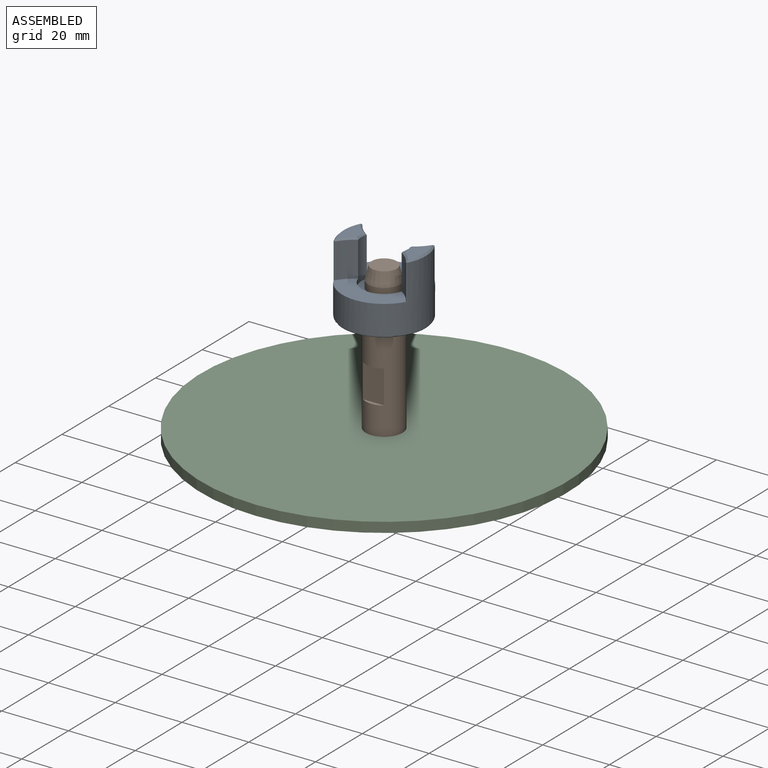
[diagram: assembled view]
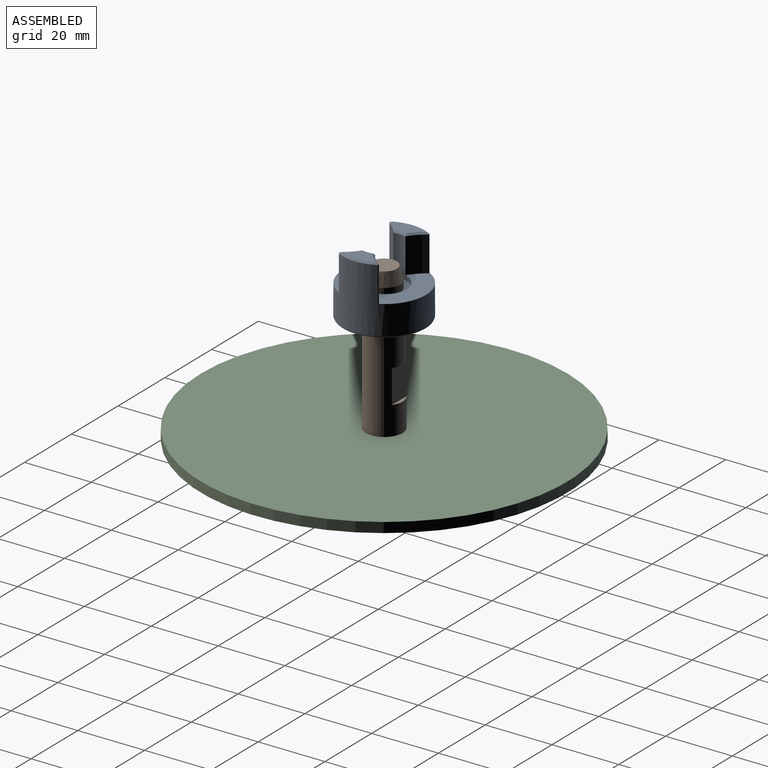
[diagram: assembled view, second angle]
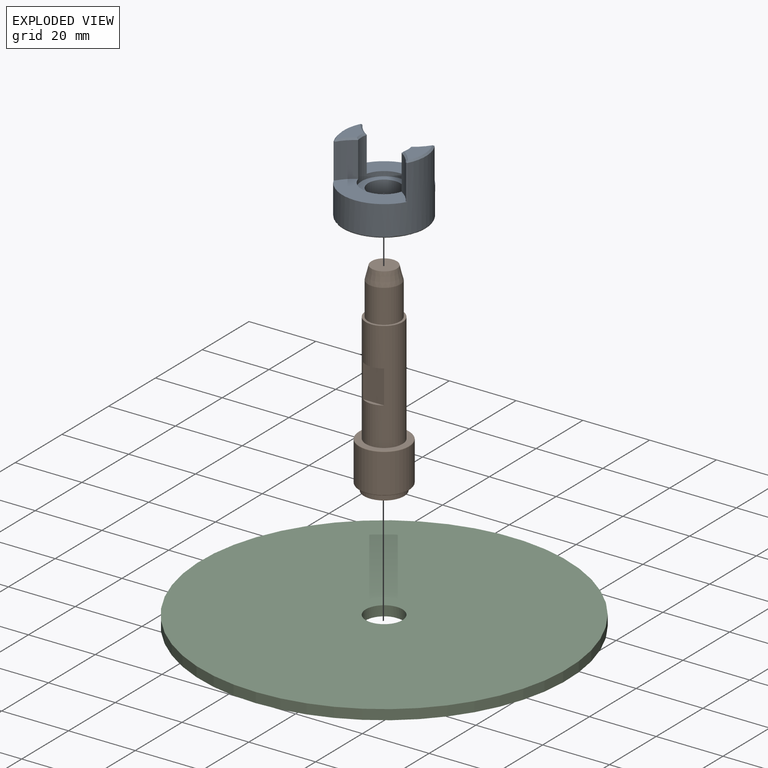
[diagram: exploded view]
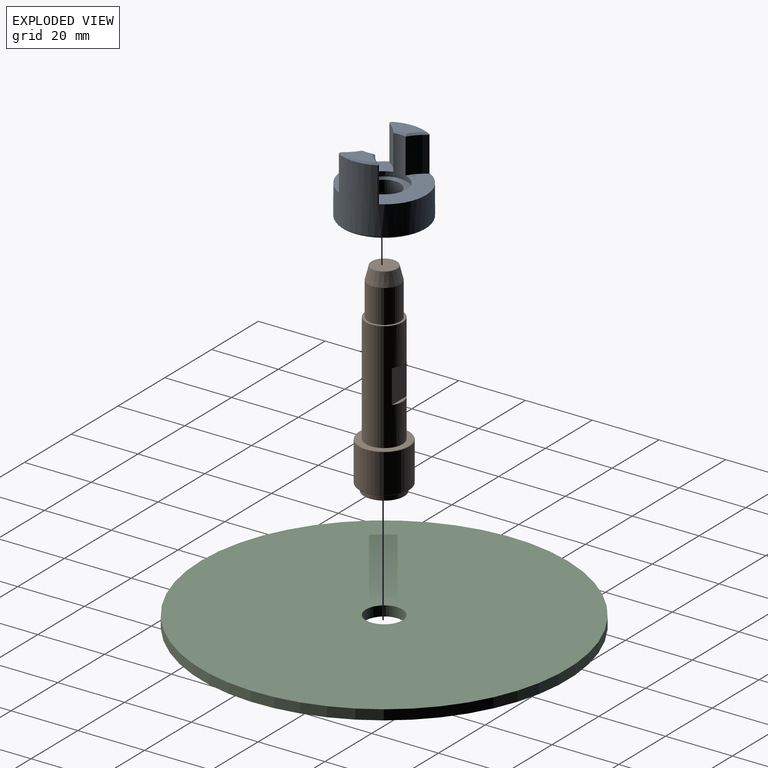
[diagram: exploded view, second angle]
ASSEMBLY  parts=3 mates=2
PART A: 26 faces, bbox 27.1x27.1x20.3 mm
  f0: plane 10.5x4.93mm, normal (0,0,-1), area 31.8mm2, adj f17,f18,f19,f20
  f1: plane 10.5x4.93mm, normal (0,0,-1), area 31.8mm2, adj f13,f14,f15,f16
  f2: cylinder r=4.8mm len=9.6mm, axis (0,0,1), area 236.8mm2, adj f4,f12
  f3: cylinder r=12.5mm len=25mm, axis (0,0,-1), area 940mm2, adj f7,f10,f13,f18,f21,f22,f23,f24
  f4: plane 24x24mm, normal (0,0,1), area 380mm2, adj f2,f25
  f5: cylinder r=12.5mm len=10.5mm, axis (0,0,-1), area 60.3mm2, adj f7,f11,f14,f22
  f6: cylinder r=12.5mm len=10.5mm, axis (0,0,-1), area 60.3mm2, adj f7,f11,f17,f24
  f7: plane 22.16x10.68mm, normal (0,0,-1), area 128.7mm2, adj f3,f5,f6,f11,f22,f24
  f8: cylinder r=12.5mm len=10.5mm, axis (0,0,-1), area 60.3mm2, adj f10,f11,f20,f21
  f9: cylinder r=12.5mm len=10.5mm, axis (0,0,-1), area 60.3mm2, adj f10,f11,f15,f23
  f10: plane 22.16x10.68mm, normal (0,0,-1), area 128.7mm2, adj f3,f8,f9,f11,f21,f23
  f11: cylinder r=6.75mm len=13.5mm, axis (0,0,-1), area 136.9mm2, adj f5,f6,f7,f8,f9,f10,f12,f16
  f12: plane 13.5x13.5mm, normal (0,0,-1), area 70.8mm2, adj f2,f11
  f13: cone r=12.5mm half-angle=45deg, axis (0,0,1), area 8.4mm2, adj f1,f3,f14,f15,f22,f23
  f14: cone r=12.5mm half-angle=45deg, axis (0,0,-1), area 4mm2, adj f1,f5,f13,f16,f22
  f15: cone r=12.5mm half-angle=45deg, axis (0,0,-1), area 4mm2, adj f1,f9,f13,f16,f23
  f16: cone r=6.75mm half-angle=45deg, axis (0,0,-1), area 2.4mm2, adj f1,f11,f14,f15
  f17: cone r=12.5mm half-angle=45deg, axis (0,0,-1), area 4mm2, adj f0,f6,f18,f19,f24
  f18: cone r=12.5mm half-angle=45deg, axis (0,0,1), area 8.4mm2, adj f0,f3,f17,f20,f21,f24
  f19: cone r=6.75mm half-angle=45deg, axis (0,0,-1), area 2.4mm2, adj f0,f11,f17,f20
  f20: cone r=12.5mm half-angle=45deg, axis (0,0,-1), area 4mm2, adj f0,f8,f18,f19,f21
  f21: cylinder r=0.3mm len=10.65mm, axis (0,0,-1), area 6.6mm2, adj f3,f8,f10,f18,f20
  f22: cylinder r=0.3mm len=10.65mm, axis (0,0,-1), area 6.6mm2, adj f3,f5,f7,f13,f14
  f23: cylinder r=0.3mm len=10.65mm, axis (0,0,1), area 6.6mm2, adj f3,f9,f10,f13,f15
  f24: cylinder r=0.3mm len=10.65mm, axis (0,0,1), area 6.6mm2, adj f3,f6,f7,f17,f18
  f25: torus R=12mm, axis (0,0,1), area 60.8mm2, adj f3,f4
PART B: 20 faces, bbox 16.2x16.2x61 mm
  f0: plane 12x12mm, normal (0,0,-1), area 62.8mm2, adj f1,f10
  f1: cylinder r=6mm len=12mm, axis (0,0,1), area 75.4mm2, adj f0,f2
  f2: plane 14.6x14.6mm, normal (0,0,-1), area 54.3mm2, adj f1,f18
  f3: cylinder r=7.5mm len=15mm, axis (0,0,1), area 546.6mm2, adj f18,f19
  f4: plane 14.6x14.6mm, normal (0,0,1), area 72.4mm2, adj f5,f19
  f5: cylinder r=5.5mm len=33mm, axis (0,0,1), area 1005.6mm2, adj f4,f6,f11,f12,f13,f14,f15,f16
  f6: plane 11x11mm, normal (0,0,1), area 22.7mm2, adj f5,f7
  f7: cylinder r=4.8mm len=10mm, axis (0,0,1), area 301.6mm2, adj f6,f17
  f8: plane 7.6x7.6mm, normal (0,0,1), area 45.4mm2, adj f17
  f9: cone r=0mm half-angle=54.4deg, axis (0,0,-1), area 61.8mm2, adj f10
  f10: cylinder r=4mm len=9.14mm, axis (0,0,1), area 229.6mm2, adj f0,f9
  f11: plane 10x6.32mm, normal (0,1,0), area 63.2mm2, adj f5,f12,f13
  f12: plane 6.32x1mm, normal (0,0,-1), area 4.3mm2, adj f5,f11
  f13: plane 6.32x1mm, normal (0,0,1), area 4.3mm2, adj f5,f11
  f14: plane 10x6.32mm, normal (0,-1,0), area 63.2mm2, adj f5,f15,f16
  f15: plane 6.32x1mm, normal (0,0,-1), area 4.3mm2, adj f5,f14
  f16: plane 6.32x1mm, normal (0,0,1), area 4.3mm2, adj f5,f14
  f17: cone r=3.8mm half-angle=14deg, axis (0,0,-1), area 111.4mm2, adj f7,f8
  f18: torus R=7.3mm, axis (0,0,1), area 14.7mm2, adj f2,f3
  f19: torus R=7.3mm, axis (0,0,1), area 14.7mm2, adj f3,f4
PART C: 4 faces, bbox 109.7x3x109.7 mm
  f0: cylinder r=54.85mm len=109.7mm, axis (0,1,0), area 1033.9mm2, adj f1,f2
  f1: plane 109.7x109.7mm, normal (0,-1,0), area 9356.5mm2, adj f0,f3
  f2: plane 109.7x109.7mm, normal (0,1,0), area 9356.5mm2, adj f0,f3
  f3: cylinder r=5.5mm len=11mm, axis (0,-1,0), area 103.7mm2, adj f1,f2
PLACE A rot(axis=(1,0,0),180deg) t=(5.51,0.63,41.51)mm
PLACE B t=(11.61,9.88,4.76)mm
PLACE C rot(axis=(-1,0,0),90deg) t=(11.61,9.88,-11.74)mm
MATE fastened A.f2 <-> B.f19  axis (0,0,-1) through (11.61,9.88,21.26)mm
MATE fastened C.f0 <-> B.f9  axis (0,0,-1) through (11.61,9.88,-11.74)mm
